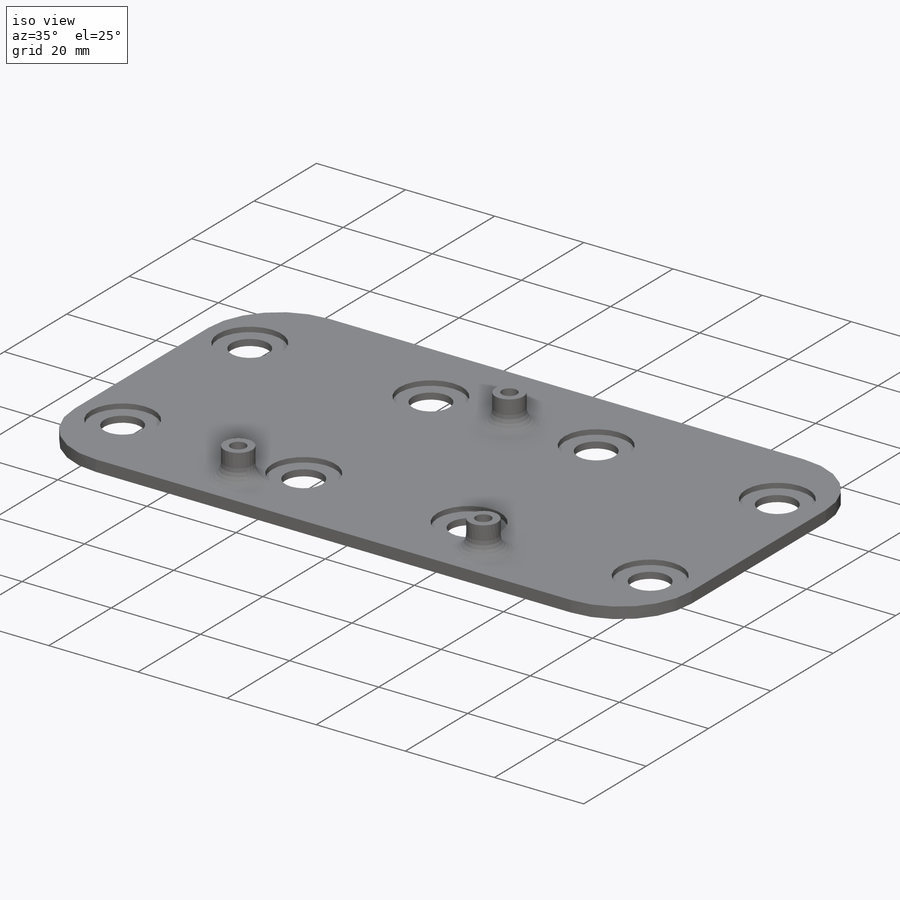
[diagram: iso view]
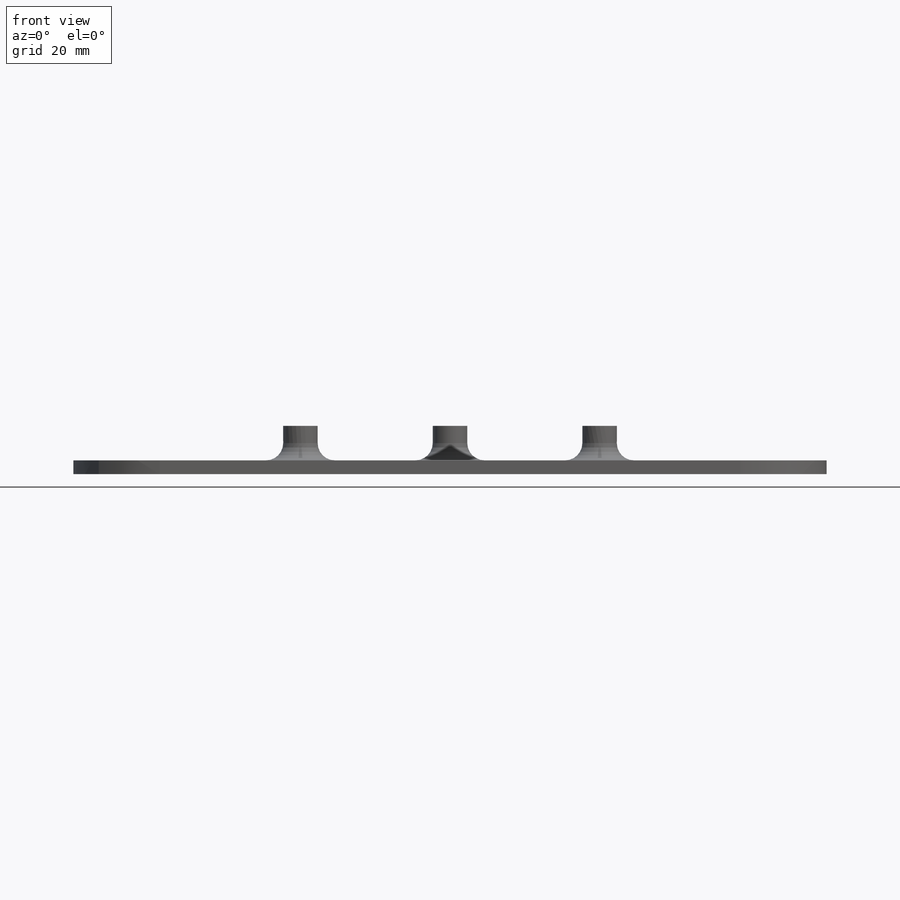
[diagram: front view]
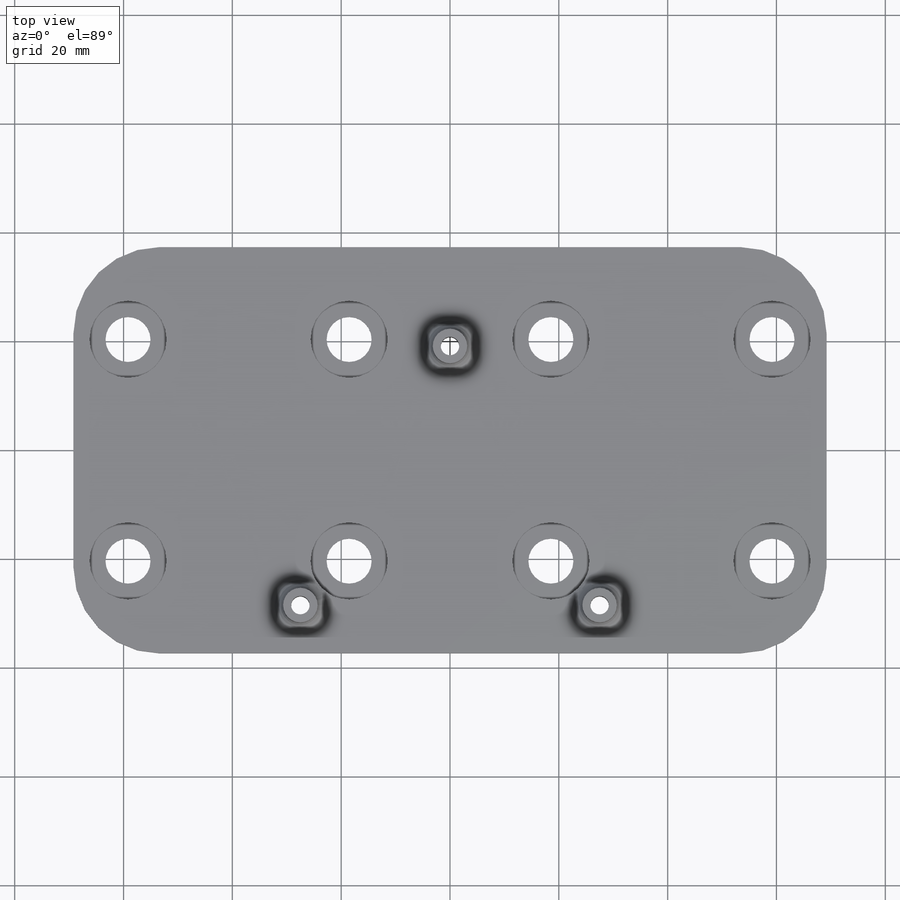
[diagram: top view]
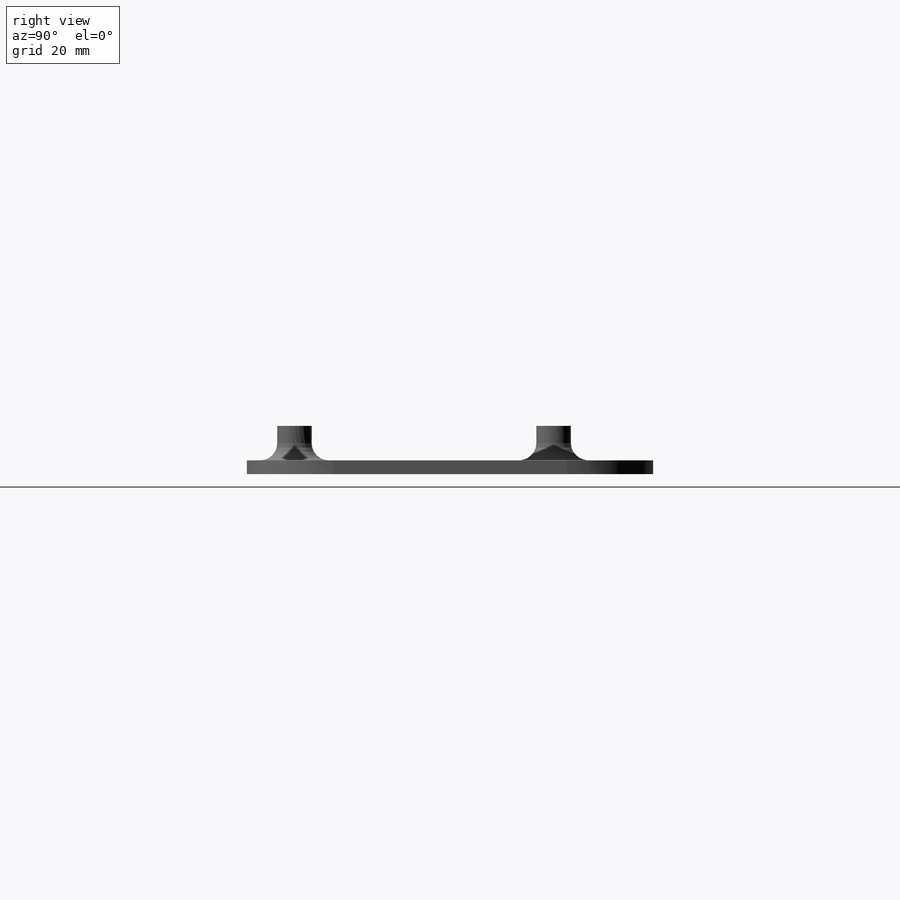
[diagram: right view]
SOLIDWORKS PART (.sldprt)
format: sldprt  version: not decoded by parser v0  size: 378,368 bytes
history: native  units: mm
features: sketch x6, extrude x2, cut_extrude x2, fillet x2, material x1, hole x1 (+13 scaffold rows collapsed)
feature tree (27):
  scaffold x13  (default folders/planes/origin — collapsed)
  material  "Material <not specified>"
  sketch  "Sketch1"  dims[D3=3.175mm D1=138.43mm D2=74.676mm D4=60.0mm D5=32.5mm D6=29.9974mm D7=6.8961mm D8=39.9669mm D9=4.826mm]
  extrude  "Boss-Extrude1"  Depth=2.54mm
  sketch  "Sketch2"  dims[D1=14.1732mm D5=14.1732mm D2=2.9464mm D3=9.8806mm D4=2.0]
  cut_extrude  "Cut-Extrude1"  Depth=1.1049mm
  sketch  "Sketch3"  dims[D2=8.2677mm D1=~2.95275mm]
  cut_extrude  "Cut-Extrude2"  [1 undecoded]
  sketch  "Sketch4"  dims[c1.D1=6.35mm c1.D4=6.35mm c1.D2=55.0mm c1.D3=55.0mm c2.D4=19.05mm]
  extrude  "Boss-Extrude2"  Depth=6.35mm
  hole  "M3 Clearance Hole1"  Diameter=3.4mm Depth=8.89mm
  sketch  "Sketch6"
  sketch  "Sketch5"  dims[hole-wizard template sketch: 60 standard entries collapsed; hole parameters kept: c18.Thru Hole Depth=8.89mm]
  fillet  "Fillet1"  Radius=3.175mm
  fillet  "Fillet2"  Radius=15.875mm
decode coverage: 11 of 13 modeling features carry decoded parameters
note: ~ marks probable driven/reference dimensions
note: 1 parameter value undecoded
note: suppression state not decoded; provenance and decode notes live in map.json
